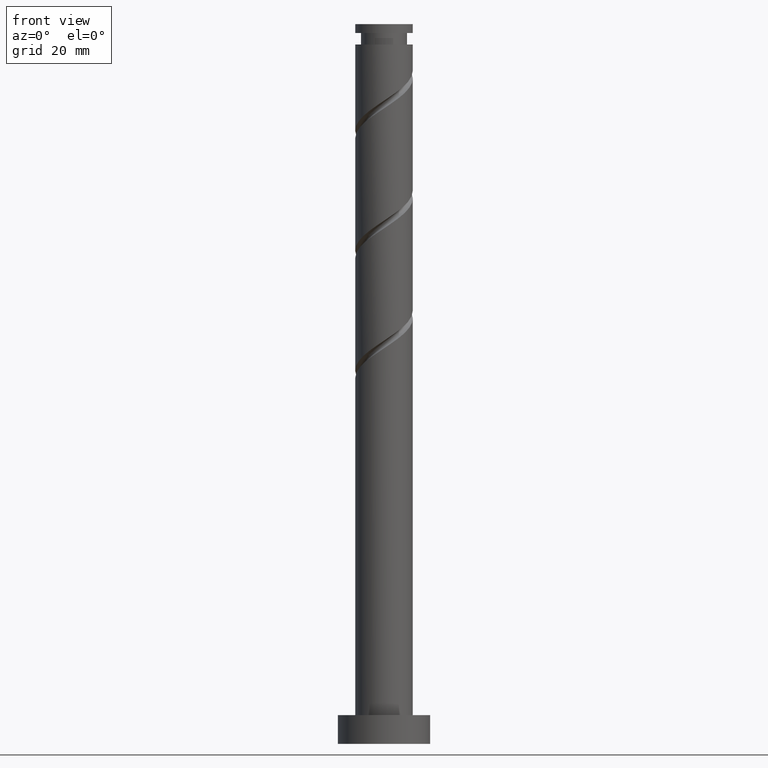
[diagram: clean part render]
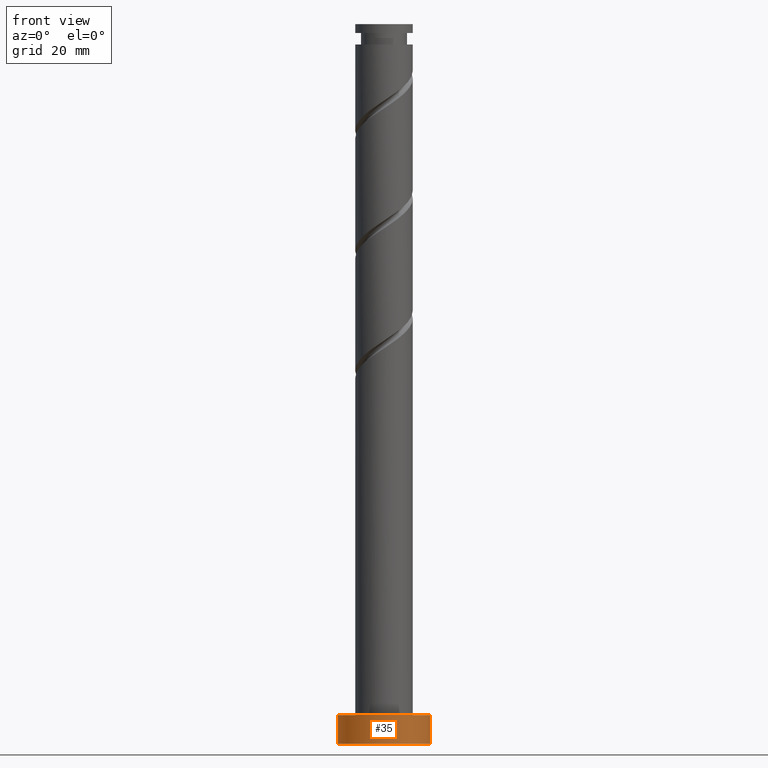
[diagram: same view with one face highlighted and labeled with its STEP entity id]
A machine part, front view. The second image highlights one B-rep face of the part: STEP entity #35.
In plain terms, the highlighted cylindrical surface (partial cylindrical patch) has radius 8 mm, axis along (-0, -0, -1).
Its self-contained STEP definition (entity closure, byte-faithful):
#35 = ADVANCED_FACE ( 'NONE', ( #1478 ), #1117, .T. ) ;
#75 = VERTEX_POINT ( 'NONE', #1004 ) ;
#108 = VECTOR ( 'NONE', #478, 1000.000000000000000 ) ;
#143 = LINE ( 'NONE', #232, #234 ) ;
#154 = CARTESIAN_POINT ( 'NONE',  ( 0.000000000000000000, 0.000000000000000000, 0.000000000000000000 ) ) ;
#162 = EDGE_CURVE ( 'NONE', #1235, #75, #1454, .T. ) ;
#166 = CARTESIAN_POINT ( 'NONE',  ( 0.000000000000000000, 0.000000000000000000, 5.000000000000000000 ) ) ;
#181 = CARTESIAN_POINT ( 'NONE',  ( 0.000000000000000000, 0.000000000000000000, 5.000000000000000000 ) ) ;
#187 = EDGE_CURVE ( 'NONE', #530, #391, #143, .T. ) ;
#213 = CARTESIAN_POINT ( 'NONE',  ( -8.000000000000000000, 0.000000000000000000, 0.000000000000000000 ) ) ;
#232 = CARTESIAN_POINT ( 'NONE',  ( -8.000000000000000000, 0.000000000000000000, 5.000000000000000000 ) ) ;
#234 = VECTOR ( 'NONE', #712, 1000.000000000000000 ) ;
#265 = DIRECTION ( 'NONE',  ( 0.000000000000000000, 0.000000000000000000, 1.000000000000000000 ) ) ;
#332 = AXIS2_PLACEMENT_3D ( 'NONE', #166, #405, #755 ) ;
#349 = CARTESIAN_POINT ( 'NONE',  ( 8.000000000000000000, 9.797174393178825657E-16, 5.000000000000000000 ) ) ;
#391 = VERTEX_POINT ( 'NONE', #213 ) ;
#393 = CIRCLE ( 'NONE', #1270, 8.000000000000000000 ) ;
#394 = AXIS2_PLACEMENT_3D ( 'NONE', #154, #265, #841 ) ;
#405 = DIRECTION ( 'NONE',  ( -0.000000000000000000, -0.000000000000000000, -1.000000000000000000 ) ) ;
#430 = DIRECTION ( 'NONE',  ( 1.000000000000000000, 0.000000000000000000, 0.000000000000000000 ) ) ;
#476 = EDGE_CURVE ( 'NONE', #530, #1235, #393, .T. ) ;
#478 = DIRECTION ( 'NONE',  ( -0.000000000000000000, -0.000000000000000000, -1.000000000000000000 ) ) ;
#530 = VERTEX_POINT ( 'NONE', #1011 ) ;
#685 = CARTESIAN_POINT ( 'NONE',  ( 8.000000000000000000, 9.797174393178825657E-16, 5.000000000000000000 ) ) ;
#712 = DIRECTION ( 'NONE',  ( -0.000000000000000000, -0.000000000000000000, -1.000000000000000000 ) ) ;
#745 = CIRCLE ( 'NONE', #394, 8.000000000000000000 ) ;
#755 = DIRECTION ( 'NONE',  ( -1.000000000000000000, 0.000000000000000000, 0.000000000000000000 ) ) ;
#841 = DIRECTION ( 'NONE',  ( 1.000000000000000000, 0.000000000000000000, 0.000000000000000000 ) ) ;
#918 = ORIENTED_EDGE ( 'NONE', *, *, #162, .F. ) ;
#948 = ORIENTED_EDGE ( 'NONE', *, *, #476, .F. ) ;
#965 = EDGE_LOOP ( 'NONE', ( #918, #948, #1074, #1489 ) ) ;
#1004 = CARTESIAN_POINT ( 'NONE',  ( 8.000000000000000000, 9.797174393178825657E-16, 0.000000000000000000 ) ) ;
#1011 = CARTESIAN_POINT ( 'NONE',  ( -8.000000000000000000, 0.000000000000000000, 5.000000000000000000 ) ) ;
#1074 = ORIENTED_EDGE ( 'NONE', *, *, #187, .T. ) ;
#1117 = CYLINDRICAL_SURFACE ( 'NONE', #332, 8.000000000000000000 ) ;
#1139 = DIRECTION ( 'NONE',  ( 0.000000000000000000, 0.000000000000000000, 1.000000000000000000 ) ) ;
#1235 = VERTEX_POINT ( 'NONE', #685 ) ;
#1270 = AXIS2_PLACEMENT_3D ( 'NONE', #181, #1139, #430 ) ;
#1375 = EDGE_CURVE ( 'NONE', #391, #75, #745, .T. ) ;
#1454 = LINE ( 'NONE', #349, #108 ) ;
#1478 = FACE_OUTER_BOUND ( 'NONE', #965, .T. ) ;
#1489 = ORIENTED_EDGE ( 'NONE', *, *, #1375, .T. ) ;